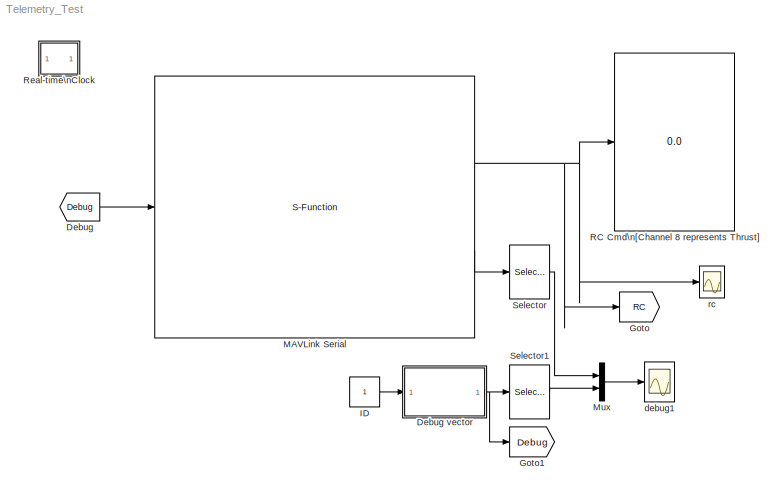
MODEL Telemetry_Test
KIND model
CONFIG InitFcn = sample_time_Vicon = 0.004;\nsample_time=0.02;\nDeltaT = sample_time;\nH0 = -0.36;\nKl = 1;\nOmega_r =1.1; %1.3\n\n
BLOCK [From] Debug
  GotoTag = Debug
  SID = 2628
  TagVisibility = global
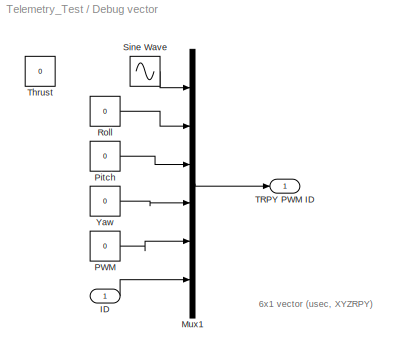
BLOCK [SubSystem] Debug vector
  FunctionWithSeparateData = off
  MaskHideContents = off
  MinAlgLoopOccurrences = off
  Opaque = off
  Ports = [1, 1]
  PropExecContextOutsideSubsystem = off
  RTWSystemCode = Auto
  RequestExecContextInheritance = off
  SID = 2608
BLOCK [Inport] Debug vector/ID
  IconDisplay = Port number
  SID = 2625
BLOCK [Mux] Debug vector/Mux1
  DisplayOption = bar
  Inputs = 6
  Ports = [6, 1]
  SID = 2609
BLOCK [Constant] Debug vector/PWM
  SID = 2610
  Value = 0
BLOCK [Constant] Debug vector/Pitch
  SID = 2611
  Value = 0
BLOCK [Constant] Debug vector/Roll
  SID = 2612
  Value = 0
BLOCK [Sin] Debug vector/Sine Wave
  Ports = [0, 1]
  SID = 2613
  SampleTime = 0
BLOCK [Outport] Debug vector/TRPY PWM ID
  IconDisplay = Port number
  SID = 2617
BLOCK [Constant] Debug vector/Thrust
  SID = 2614
  Value = 0
BLOCK [Constant] Debug vector/Yaw
  SID = 2615
  Value = 0
BLOCK [Goto] Goto
  GotoTag = RC
  SID = 5
  TagVisibility = global
BLOCK [Goto] Goto1
  GotoTag = Debug
  SID = 2627
  TagVisibility = global
BLOCK [Constant] ID
  SID = 2626
BLOCK [S-Function] MAVLink Serial
  EnableBusSupport = off
  FunctionName = MAVLink_Interface_MultUAV
  MaskCallbackString = |||||||||||||||||||||||||||||||||
  MaskDisplay = % Block image\nimage(imread('10-inch Quad Heat Map.png'));\n\n%Label block\nfprintf('MAVLink Serial\\n%s\\n%dbps', COM_Port,  Baud_Rate)\n\n\n%Label input ports\n\nin = 1;\nif (Quad_1 == 1)\n    port_label('input', in, 'Quad 1');\n    in = in + 1;\nend\nif (Quad_2 == 1)\n    port_label('input', in, 'Quad 2');\n    in = in + 1;\nend\n\nif (Quad_3 == 1)\n    port_label('input', in, 'Quad 3');\n    i...<+2516ch>
  MaskEnableString = on,on,on,on,on,on,on,on,on,on,on,on,on,on,on,on,on,on,on,on,on,on,on,on,on,on,on,on,on,on,on,on,on,on
  MaskIconFrame = on
  MaskIconOpaque = off
  MaskIconRotate = none
  MaskIconUnits = autoscale
  MaskInitialization = MSG_ID_NUM_INPUT = [uint8(196) uint8(197) uint8(198) uint8(199) uint8(200) uint8(201) uint8(202) uint8(203) uint8(204) uint8(205)\n                    uint8(206) uint8(207) uint8(208) uint8(209) uint8(210) uint8(211) uint8(212) uint8(213) uint8(214) uint8(215)\n                    uint8(216) uint8(217) uint8(218) uint8(219) uint8(220) uint8(221) uint8(222) uint8(223) uint8(224) uint8(225)];\nMSG_I...<+556ch>
  MaskPortRotate = default
  MaskPromptString = COM Port|Baud Rate|ATTITUDE|RC CHANNELS SCALED|Quad No 1|Quad No 2|Quad No 3|Quad No 4|Quad No 5|Quad No 6|Quad No 7|Quad No 8|Quad No 9|Quad No 10|Quad No 11|Quad No 12|Quad No 13|Quad No 14|Quad No 15|Quad No 16|Quad No 17|Quad No 18|Quad No 19|Quad No 20|Quad No 21|Quad No 22|Quad No 23|Quad No 24|Quad No 25|Quad No 26|Quad No 27|Quad No 28|Quad No 29|Quad No 30
  MaskStyleString = edit,edit,checkbox,checkbox,checkbox,checkbox,checkbox,checkbox,checkbox,checkbox,checkbox,checkbox,checkbox,checkbox,checkbox,checkbox,checkbox,checkbox,checkbox,checkbox,checkbox,checkbox,checkbox,checkbox,checkbox,checkbox,checkbox,checkbox,checkbox,checkbox,checkbox,checkbox,checkbox,checkbox
  MaskTabNameString = Setting,Setting,Output Message,Output Message,Input Message,Input Message,Input Message,Input Message,Input Message,Input Message,Input Message,Input Message,Input Message,Input Message,Input Message,Input Message,Input Message,Input Message,Input Message,Input Message,Input Message,Input Message,Input Message,Input Message,Input Message,Input Message,Input Message,Input Message,Input Message,Inpu...<+65ch>
  MaskToolTipString = on,on,on,on,on,on,on,on,on,on,on,on,on,on,on,on,on,on,on,on,on,on,on,on,on,on,on,on,on,on,on,on,on,on
  MaskTunableValueString = on,on,on,on,on,on,on,on,on,on,on,on,on,on,on,on,on,on,on,on,on,on,on,on,on,on,on,on,on,on,on,on,on,on
  MaskValueString = 'COM7'|57600|on|on|off|off|off|off|off|off|on|off|off|off|off|off|off|off|off|off|off|off|off|off|off|off|off|off|off|off|off|off|off|off
  MaskVariables = COM_Port=@1;Baud_Rate=@2;ATTITUDE_OUT=@3;RC_SCALED=@4;Quad_1=@5;Quad_2=@6;Quad_3=@7;Quad_4=@8;Quad_5=@9;Quad_6=@10;Quad_7=@11;Quad_8=@12;Quad_9=@13;Quad_10=@14;Quad_11=@15;Quad_12=@16;Quad_13=@17;Quad_14=@18;Quad_15=@19;Quad_16=@20;Quad_17=@21;Quad_18=@22;Quad_19=@23;Quad_20=@24;Quad_21=@25;Quad_22=@26;Quad_23=@27;Quad_24=@28;Quad_25=@29;Quad_26=@30;Quad_27=@31;Quad_28=@32;Quad_29=@33;Quad_30=@34;
  MaskVisibilityString = on,on,on,on,on,on,on,on,on,on,on,on,on,on,on,on,on,on,on,on,on,on,on,on,on,on,on,on,on,on,on,on,on,on
  Parameters = COM_Port,Baud_Rate,MSG_INPUT,MSG_OUTPUT
  Ports = [1, 2]
  SID = 2618
BLOCK [Mux] Mux
  DisplayOption = bar
  Inputs = 2
  Ports = [2, 1]
  SID = 2621
BLOCK [Display] RC Cmd\n[Channel 8 represents Thrust]
  Decimation = 1
  Lockdown = off
  Ports = [1]
  SID = 55
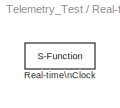
BLOCK [SubSystem] Real-time\nClock
  FunctionWithSeparateData = off
  MaskCallbackString = |
  MaskDescription = Real-time Synchronization Block
  MaskDisplay = plot(0,0,100,100,[40,60,60,54,54,64,69,76,82,77,81,83,83,81,78,74,70,64,57,49,41,35,32,30,30,31,34,40,47,47,40,40],[90,90,85,85,80,79,76,87,80,70,64,57,49,41,33,28,24,22,21,23,25,31,37,46,56,65,73,78,80,85,85,90],[69,53,53],[64,50,73])
  MaskEnableString = on,on
  MaskHelp = This block synchronizes simulation time with the PC real-time clock or UNIX system clock. The first dialog entry is the period at which the clock is checked to insure real-time synchronization. The second dialog entry is the number of seconds that the simulation time must be within real-time before a warning is printed.
  MaskHideContents = off
  MaskIconFrame = on
  MaskIconOpaque = on
  MaskIconRotate = none
  MaskIconUnits = autoscale
  MaskPortRotate = default
  MaskPromptString = Synchronize with real-time every n seconds:|Real-time warning tolerance (seconds):
  MaskStyleString = edit,edit
  MaskToolTipString = on,on
  MaskTunableValueString = on,on
  MaskType = Real-time Clock
  MaskValueString = sample_time|0.03
  MaskVariables = sample_time=@1;tolerance=@2;
  MaskVisibilityString = on,on
  MinAlgLoopOccurrences = off
  Opaque = off
  Ports = []
  PropExecContextOutsideSubsystem = off
  RTWSystemCode = Auto
  RequestExecContextInheritance = off
  SID = 607
  ShowPortLabels = none
BLOCK [S-Function] Real-time\nClock/Real-time\nClock
  EnableBusSupport = off
  FunctionName = rtclock
  Parameters = sample_time, tolerance
  Ports = []
  SID = 608
BLOCK [Selector] Selector
  IndexOptions = Index vector (dialog)
  Indices = [3]
  InputPortWidth = 6
  OutputSizes = 1
  Ports = [1, 1]
  SID = 2623
BLOCK [Selector] Selector1
  IndexOptions = Index vector (dialog)
  Indices = 1
  InputPortWidth = 6
  OutputSizes = 1
  Ports = [1, 1]
  SID = 2624
BLOCK [Scope] debug1
  DataFormat = StructureWithTime
  Floating = off
  LimitDataPoints = off
  NumInputPorts = 1
  Ports = [1]
  SID = 2629
  SampleTime = 0
  SaveName = ScopeData2
  TimeRange = 10
  YMax = 1
  YMin = -1
BLOCK [Scope] rc
  DataFormat = StructureWithTime
  Floating = off
  LimitDataPoints = off
  NumInputPorts = 1
  Ports = [1]
  SID = 1363
  SampleTime = 0
  SaveName = ScopeData1
  TimeRange = 10
  YMax = 0.05
  YMin = -1
ANNOTATION Debug vector: 6x1 vector (usec, XYZRPY)
LINE Debug vector/ID:1 -> Debug vector/Mux1:6
LINE Debug vector/Mux1:1 -> Debug vector/TRPY PWM ID:1
LINE Debug vector/PWM:1 -> Debug vector/Mux1:5
LINE Debug vector/Pitch:1 -> Debug vector/Mux1:3
LINE Debug vector/Roll:1 -> Debug vector/Mux1:2
LINE Debug vector/Sine Wave:1 -> Debug vector/Mux1:1
LINE Debug vector/Yaw:1 -> Debug vector/Mux1:4
NET Debug vector:1 -> Goto1:1, Selector1:1
LINE Debug:1 -> MAVLink Serial:1
LINE ID:1 -> Debug vector:1
NET MAVLink Serial:1 -> Goto:1, RC Cmd\n[Channel 8 represents Thrust]:1, rc:1
LINE MAVLink Serial:2 -> Selector:1
LINE Mux:1 -> debug1:1
LINE Selector1:1 -> Mux:2
LINE Selector:1 -> Mux:1
note: NET lines group one-source signal fan-out (src -> all destinations, sorted); 1:1 wires keep LINE
